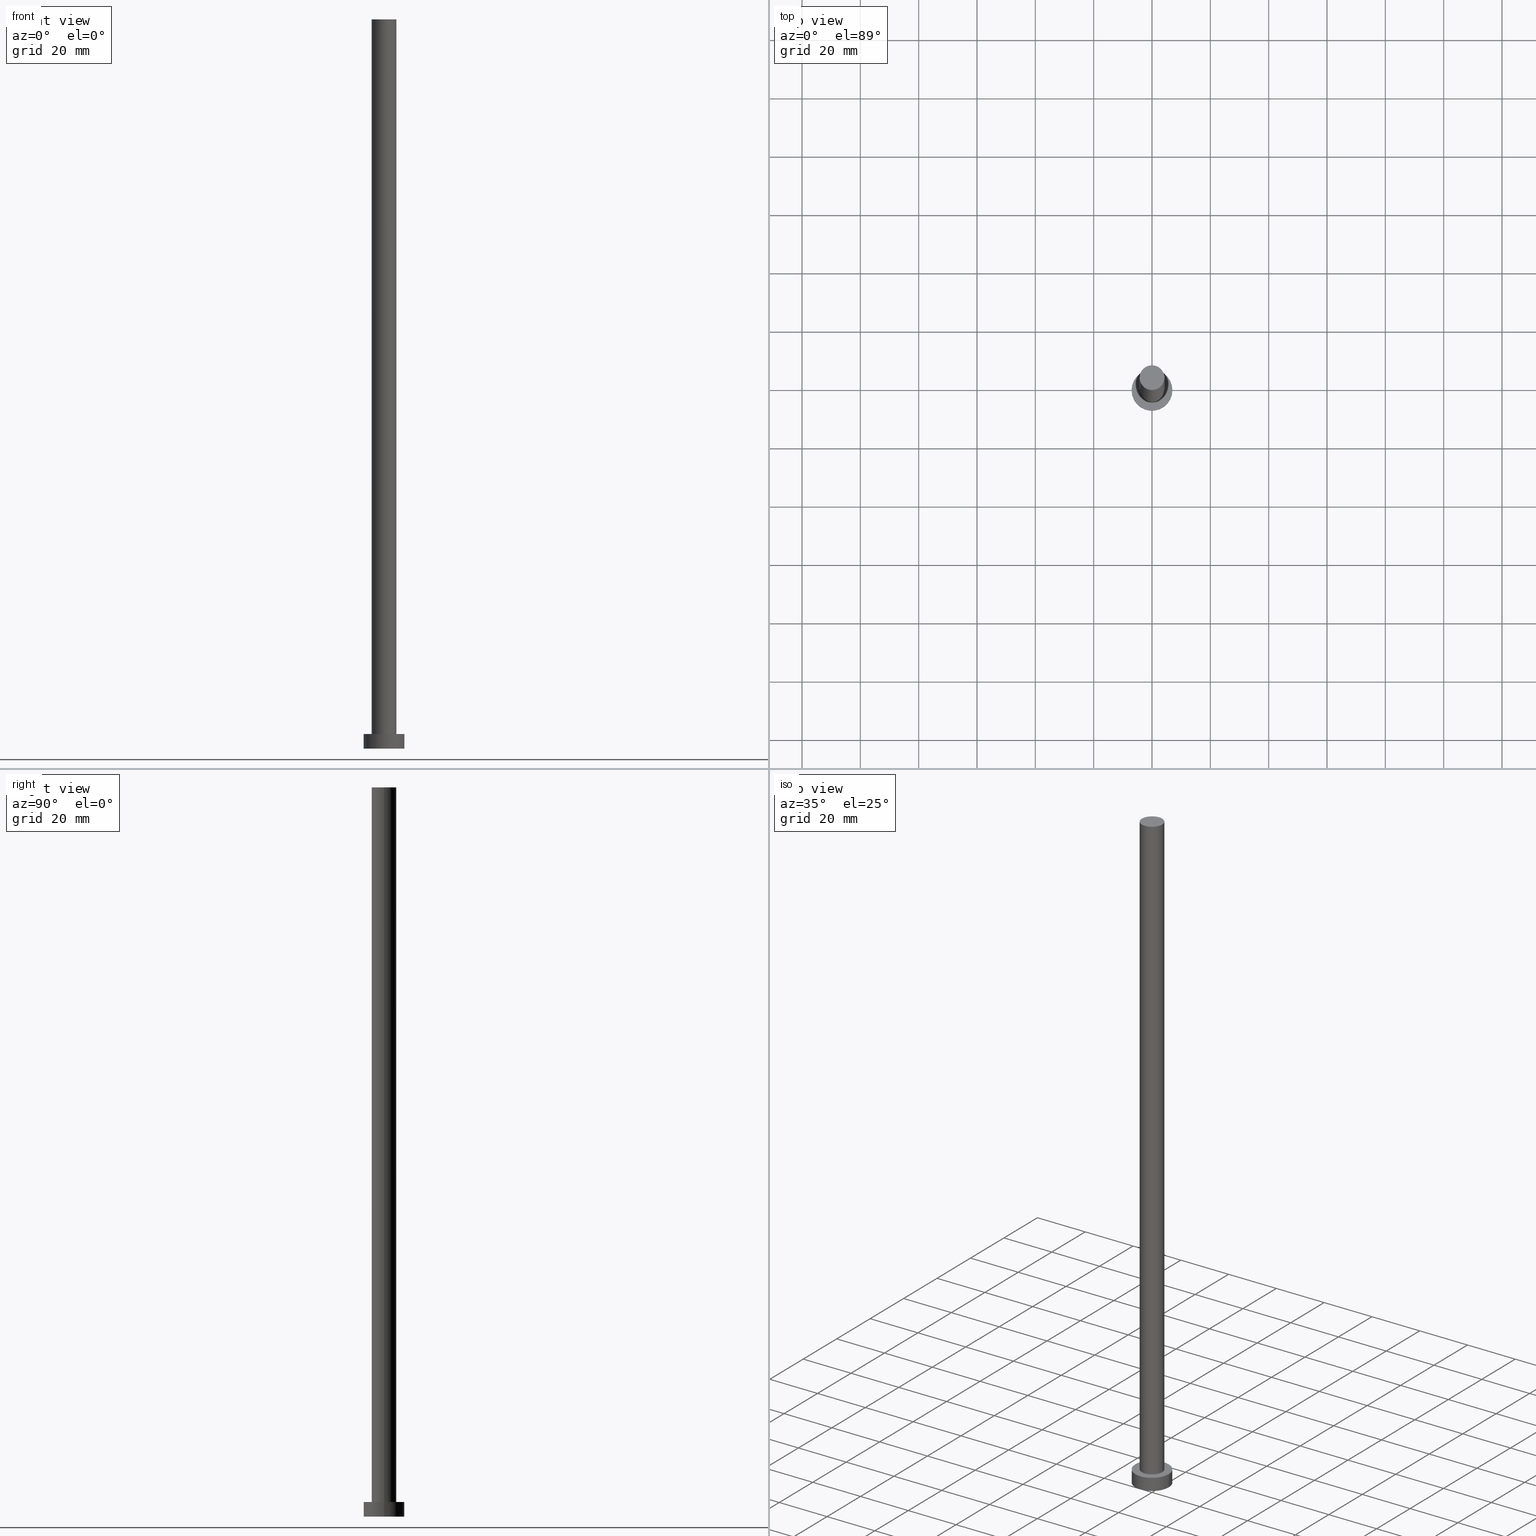
[diagram: canonical four-view strip — front | top / right | iso, engineering-drawing reading convention]
A machine part, canonical four-view strip (front | top / right | iso — engineering-drawing reading convention). The complete STEP part file that produces these views, byte-faithful:
ISO-10303-21;
HEADER;
FILE_DESCRIPTION (( 'STEP AP203' ),
    '1' );
FILE_NAME ('2279.STEP',
    '2026-02-06T12:38:50',
    ( '' ),
    ( '' ),
    'SwSTEP 2.0',
    'SolidWorks 2019',
    '' );
FILE_SCHEMA (( 'CONFIG_CONTROL_DESIGN' ));
ENDSEC;

DATA;
#1 = DIRECTION ( 'NONE',  ( 1.000000000000000000, 0.000000000000000000, 0.000000000000000000 ) ) ;
#2 = CYLINDRICAL_SURFACE ( 'NONE', #121, 4.250000000000000000 ) ;
#3 = AXIS2_PLACEMENT_3D ( 'NONE', #4, #236, #79 ) ;
#4 = CARTESIAN_POINT ( 'NONE',  ( 0.000000000000000000, 0.000000000000000000, 5.000000000000000000 ) ) ;
#5 = APPROVAL ( #73, 'NEUR�EN�' ) ;
#6 = APPLICATION_PROTOCOL_DEFINITION ( 'international standard', 'config_control_design', 1994, #63 ) ;
#7 = CIRCLE ( 'NONE', #37, 7.000000000000000000 ) ;
#8 = ORIENTED_EDGE ( 'NONE', *, *, #145, .T. ) ;
#9 = AXIS2_PLACEMENT_3D ( 'NONE', #67, #235, #34 ) ;
#10 = CARTESIAN_POINT ( 'NONE',  ( 0.000000000000000000, 0.000000000000000000, 0.000000000000000000 ) ) ;
#11 = ORIENTED_EDGE ( 'NONE', *, *, #33, .T. ) ;
#12 = CARTESIAN_POINT ( 'NONE',  ( 4.250000000000000000, 5.204748896376250699E-16, 250.0000000000000000 ) ) ;
#13 = EDGE_LOOP ( 'NONE', ( #58, #219, #112, #8 ) ) ;
#14 = CARTESIAN_POINT ( 'NONE',  ( 7.000000000000000000, 8.572527594031473190E-16, 5.000000000000000000 ) ) ;
#15 = PERSON_AND_ORGANIZATION_ROLE ( 'design_owner' ) ;
#16 = DIRECTION ( 'NONE',  ( 0.000000000000000000, 0.000000000000000000, 1.000000000000000000 ) ) ;
#17 = AXIS2_PLACEMENT_3D ( 'NONE', #216, #83, #1 ) ;
#18 = ORIENTED_EDGE ( 'NONE', *, *, #30, .T. ) ;
#19 = PLANE ( 'NONE',  #125 ) ;
#20 = APPROVAL_PERSON_ORGANIZATION ( #71, #32, #97 ) ;
#21 = CYLINDRICAL_SURFACE ( 'NONE', #86, 7.000000000000000000 ) ;
#22 = CC_DESIGN_APPROVAL ( #5, ( #122 ) ) ;
#23 = CC_DESIGN_DATE_AND_TIME_ASSIGNMENT ( #200, #134, ( #144 ) ) ;
#24 = DIRECTION ( 'NONE',  ( 1.000000000000000000, 0.000000000000000000, 0.000000000000000000 ) ) ;
#25 = CARTESIAN_POINT ( 'NONE',  ( 7.000000000000000000, 8.572527594031473190E-16, 0.000000000000000000 ) ) ;
#26 = VERTEX_POINT ( 'NONE', #191 ) ;
#27 = AXIS2_PLACEMENT_3D ( 'NONE', #87, #84, #160 ) ;
#28 = FACE_OUTER_BOUND ( 'NONE', #199, .T. ) ;
#29 = ORIENTED_EDGE ( 'NONE', *, *, #239, .T. ) ;
#30 = EDGE_CURVE ( 'NONE', #229, #240, #56, .T. ) ;
#31 = CC_DESIGN_SECURITY_CLASSIFICATION ( #144, ( #122 ) ) ;
#32 = APPROVAL ( #147, 'NEUR�EN�' ) ;
#33 = EDGE_CURVE ( 'NONE', #26, #188, #135, .T. ) ;
#34 = DIRECTION ( 'NONE',  ( 1.000000000000000000, 0.000000000000000000, 0.000000000000000000 ) ) ;
#35 = DIRECTION ( 'NONE',  ( -1.000000000000000000, 0.000000000000000000, 0.000000000000000000 ) ) ;
#36 = APPROVAL_DATE_TIME ( #44, #32 ) ;
#37 = AXIS2_PLACEMENT_3D ( 'NONE', #113, #95, #167 ) ;
#38 = ORIENTED_EDGE ( 'NONE', *, *, #239, .F. ) ;
#39 = DIRECTION ( 'NONE',  ( 0.000000000000000000, 0.000000000000000000, 1.000000000000000000 ) ) ;
#40 = PRODUCT_DEFINITION_SHAPE ( 'NONE', 'NONE',  #189 ) ;
#41 = CC_DESIGN_APPROVAL ( #32, ( #189 ) ) ;
#42 = EDGE_CURVE ( 'NONE', #201, #188, #238, .T. ) ;
#43 = FACE_OUTER_BOUND ( 'NONE', #178, .T. ) ;
#44 = DATE_AND_TIME ( #59, #46 ) ;
#45 = PERSON_AND_ORGANIZATION ( #221, #206 ) ;
#46 = LOCAL_TIME ( 13, 38, 50.00000000000000000, #209 ) ;
#47 = EDGE_LOOP ( 'NONE', ( #252, #129, #228, #172 ) ) ;
#48 = APPROVAL_ROLE ( '' ) ;
#49 = VECTOR ( 'NONE', #151, 1000.000000000000000 ) ;
#50 = ADVANCED_FACE ( 'NONE', ( #105 ), #2, .T. ) ;
#51 = VECTOR ( 'NONE', #223, 1000.000000000000000 ) ;
#52 = UNCERTAINTY_MEASURE_WITH_UNIT (LENGTH_MEASURE( 1.000000000000000082E-05 ), #102, 'distance_accuracy_value', 'NONE');
#53 = CARTESIAN_POINT ( 'NONE',  ( 4.250000000000000000, 5.204748896376250699E-16, 5.000000000000000000 ) ) ;
#54 =( NAMED_UNIT ( * ) PLANE_ANGLE_UNIT ( ) SI_UNIT ( $, .RADIAN. ) );
#55 = DIRECTION ( 'NONE',  ( -0.000000000000000000, -0.000000000000000000, -1.000000000000000000 ) ) ;
#56 = CIRCLE ( 'NONE', #61, 4.250000000000000000 ) ;
#57 = ADVANCED_FACE ( 'NONE', ( #196 ), #21, .T. ) ;
#58 = ORIENTED_EDGE ( 'NONE', *, *, #65, .F. ) ;
#59 = CALENDAR_DATE ( 2026, 6, 2 ) ;
#60 = DATE_AND_TIME ( #231, #103 ) ;
#61 = AXIS2_PLACEMENT_3D ( 'NONE', #251, #116, #24 ) ;
#62 = LOCAL_TIME ( 13, 38, 50.00000000000000000, #255 ) ;
#63 = APPLICATION_CONTEXT ( 'configuration controlled 3d designs of mechanical parts and assemblies' ) ;
#64 = EDGE_LOOP ( 'NONE', ( #212, #136 ) ) ;
#65 = EDGE_CURVE ( 'NONE', #240, #243, #81, .T. ) ;
#66 = VECTOR ( 'NONE', #139, 1000.000000000000000 ) ;
#67 = CARTESIAN_POINT ( 'NONE',  ( 0.000000000000000000, 0.000000000000000000, 5.000000000000000000 ) ) ;
#68 = CC_DESIGN_PERSON_AND_ORGANIZATION_ASSIGNMENT ( #180, #254, ( #144 ) ) ;
#69 = CIRCLE ( 'NONE', #237, 4.250000000000000000 ) ;
#70 = CIRCLE ( 'NONE', #110, 7.000000000000000000 ) ;
#71 = PERSON_AND_ORGANIZATION ( #221, #206 ) ;
#72 = DESIGN_CONTEXT ( 'detailed design', #165, 'design' ) ;
#73 = APPROVAL_STATUS ( 'not_yet_approved' ) ;
#74 = ADVANCED_FACE ( 'NONE', ( #43 ), #175, .F. ) ;
#75 = ORIENTED_EDGE ( 'NONE', *, *, #247, .T. ) ;
#76 = CARTESIAN_POINT ( 'NONE',  ( 0.000000000000000000, 0.000000000000000000, 5.000000000000000000 ) ) ;
#77 = DATE_AND_TIME ( #94, #140 ) ;
#78 = ORIENTED_EDGE ( 'NONE', *, *, #182, .T. ) ;
#79 = DIRECTION ( 'NONE',  ( 1.000000000000000000, 0.000000000000000000, 0.000000000000000000 ) ) ;
#80 = SHAPE_DEFINITION_REPRESENTATION ( #40, #202 ) ;
#81 = LINE ( 'NONE', #12, #222 ) ;
#82 = DATE_AND_TIME ( #123, #224 ) ;
#83 = DIRECTION ( 'NONE',  ( 0.000000000000000000, 0.000000000000000000, 1.000000000000000000 ) ) ;
#84 = DIRECTION ( 'NONE',  ( 0.000000000000000000, 0.000000000000000000, 1.000000000000000000 ) ) ;
#85 = EDGE_CURVE ( 'NONE', #188, #26, #7, .T. ) ;
#86 = AXIS2_PLACEMENT_3D ( 'NONE', #179, #249, #137 ) ;
#87 = CARTESIAN_POINT ( 'NONE',  ( 0.000000000000000000, 0.000000000000000000, 5.000000000000000000 ) ) ;
#88 = ADVANCED_FACE ( 'NONE', ( #171 ), #152, .T. ) ;
#89 =( NAMED_UNIT ( * ) SI_UNIT ( $, .STERADIAN. ) SOLID_ANGLE_UNIT ( ) );
#90 = AXIS2_PLACEMENT_3D ( 'NONE', #155, #230, #91 ) ;
#91 = DIRECTION ( 'NONE',  ( 1.000000000000000000, 0.000000000000000000, -0.000000000000000000 ) ) ;
#92 = AXIS2_PLACEMENT_3D ( 'NONE', #76, #39, #207 ) ;
#93 = EDGE_CURVE ( 'NONE', #240, #229, #69, .T. ) ;
#94 = CALENDAR_DATE ( 2026, 6, 2 ) ;
#95 = DIRECTION ( 'NONE',  ( 0.000000000000000000, 0.000000000000000000, 1.000000000000000000 ) ) ;
#96 = EDGE_LOOP ( 'NONE', ( #18, #126 ) ) ;
#97 = APPROVAL_ROLE ( '' ) ;
#98 = ORIENTED_EDGE ( 'NONE', *, *, #93, .F. ) ;
#99 = LINE ( 'NONE', #198, #66 ) ;
#100 = DIRECTION ( 'NONE',  ( 1.000000000000000000, 0.000000000000000000, 0.000000000000000000 ) ) ;
#101 = ORIENTED_EDGE ( 'NONE', *, *, #33, .F. ) ;
#102 =( LENGTH_UNIT ( ) NAMED_UNIT ( * ) SI_UNIT ( .MILLI., .METRE. ) );
#103 = LOCAL_TIME ( 13, 38, 50.00000000000000000, #156 ) ;
#104 = COORDINATED_UNIVERSAL_TIME_OFFSET ( 1, 0, .AHEAD. ) ;
#105 = FACE_OUTER_BOUND ( 'NONE', #208, .T. ) ;
#106 = ADVANCED_FACE ( 'NONE', ( #143, #28 ), #220, .T. ) ;
#107 = APPROVAL_PERSON_ORGANIZATION ( #119, #185, #48 ) ;
#108 = LINE ( 'NONE', #111, #49 ) ;
#109 = DIRECTION ( 'NONE',  ( 0.000000000000000000, 0.000000000000000000, 1.000000000000000000 ) ) ;
#110 = AXIS2_PLACEMENT_3D ( 'NONE', #117, #245, #118 ) ;
#111 = CARTESIAN_POINT ( 'NONE',  ( -7.000000000000000000, 0.000000000000000000, 5.000000000000000000 ) ) ;
#112 = ORIENTED_EDGE ( 'NONE', *, *, #205, .T. ) ;
#113 = CARTESIAN_POINT ( 'NONE',  ( 0.000000000000000000, 0.000000000000000000, 0.000000000000000000 ) ) ;
#114 = VERTEX_POINT ( 'NONE', #162 ) ;
#115 = PERSON_AND_ORGANIZATION_ROLE ( 'creator' ) ;
#116 = DIRECTION ( 'NONE',  ( 0.000000000000000000, 0.000000000000000000, 1.000000000000000000 ) ) ;
#117 = CARTESIAN_POINT ( 'NONE',  ( 0.000000000000000000, 0.000000000000000000, 5.000000000000000000 ) ) ;
#118 = DIRECTION ( 'NONE',  ( 1.000000000000000000, 0.000000000000000000, 0.000000000000000000 ) ) ;
#119 = PERSON_AND_ORGANIZATION ( #221, #206 ) ;
#120 = FACE_OUTER_BOUND ( 'NONE', #47, .T. ) ;
#121 = AXIS2_PLACEMENT_3D ( 'NONE', #187, #225, #133 ) ;
#122 = PRODUCT_DEFINITION_FORMATION_WITH_SPECIFIED_SOURCE ( 'LIBOVOLN�', '', #149, .NOT_KNOWN. ) ;
#123 = CALENDAR_DATE ( 2026, 6, 2 ) ;
#124 = CARTESIAN_POINT ( 'NONE',  ( 7.000000000000000000, 8.572527594031473190E-16, 5.000000000000000000 ) ) ;
#125 = AXIS2_PLACEMENT_3D ( 'NONE', #170, #127, #190 ) ;
#126 = ORIENTED_EDGE ( 'NONE', *, *, #93, .T. ) ;
#127 = DIRECTION ( 'NONE',  ( 0.000000000000000000, 0.000000000000000000, 1.000000000000000000 ) ) ;
#128 = ORIENTED_EDGE ( 'NONE', *, *, #85, .F. ) ;
#129 = ORIENTED_EDGE ( 'NONE', *, *, #42, .T. ) ;
#130 = APPLICATION_PROTOCOL_DEFINITION ( 'international standard', 'config_control_design', 1994, #165 ) ;
#131 = APPROVAL_DATE_TIME ( #60, #5 ) ;
#132 = CARTESIAN_POINT ( 'NONE',  ( -7.000000000000000000, 0.000000000000000000, 5.000000000000000000 ) ) ;
#133 = DIRECTION ( 'NONE',  ( -1.000000000000000000, 0.000000000000000000, 0.000000000000000000 ) ) ;
#134 = DATE_TIME_ROLE ( 'classification_date' ) ;
#135 = CIRCLE ( 'NONE', #17, 7.000000000000000000 ) ;
#136 = ORIENTED_EDGE ( 'NONE', *, *, #154, .F. ) ;
#137 = DIRECTION ( 'NONE',  ( -1.000000000000000000, 0.000000000000000000, 0.000000000000000000 ) ) ;
#138 = PRODUCT_RELATED_PRODUCT_CATEGORY ( 'detail', '', ( #149 ) ) ;
#139 = DIRECTION ( 'NONE',  ( -0.000000000000000000, -0.000000000000000000, -1.000000000000000000 ) ) ;
#140 = LOCAL_TIME ( 13, 38, 50.00000000000000000, #226 ) ;
#141 = ORIENTED_EDGE ( 'NONE', *, *, #205, .F. ) ;
#142 =( GEOMETRIC_REPRESENTATION_CONTEXT ( 3 ) GLOBAL_UNCERTAINTY_ASSIGNED_CONTEXT ( ( #52 ) ) GLOBAL_UNIT_ASSIGNED_CONTEXT ( ( #102, #54, #89 ) ) REPRESENTATION_CONTEXT ( 'NONE', 'WORKASPACE' ) );
#143 = FACE_BOUND ( 'NONE', #64, .T. ) ;
#144 = SECURITY_CLASSIFICATION ( '', '', #197 ) ;
#145 = EDGE_CURVE ( 'NONE', #114, #243, #163, .T. ) ;
#146 = ORIENTED_EDGE ( 'NONE', *, *, #154, .T. ) ;
#147 = APPROVAL_STATUS ( 'not_yet_approved' ) ;
#148 = CARTESIAN_POINT ( 'NONE',  ( 0.000000000000000000, 0.000000000000000000, 250.0000000000000000 ) ) ;
#149 = PRODUCT ( '2279', '2279', '', ( #213 ) ) ;
#150 = ORIENTED_EDGE ( 'NONE', *, *, #65, .T. ) ;
#151 = DIRECTION ( 'NONE',  ( -0.000000000000000000, -0.000000000000000000, -1.000000000000000000 ) ) ;
#152 = CYLINDRICAL_SURFACE ( 'NONE', #211, 4.250000000000000000 ) ;
#153 = CIRCLE ( 'NONE', #92, 7.000000000000000000 ) ;
#154 = EDGE_CURVE ( 'NONE', #243, #114, #184, .T. ) ;
#155 = CARTESIAN_POINT ( 'NONE',  ( 0.000000000000000000, 0.000000000000000000, 0.000000000000000000 ) ) ;
#156 = COORDINATED_UNIVERSAL_TIME_OFFSET ( 1, 0, .AHEAD. ) ;
#157 = CC_DESIGN_PERSON_AND_ORGANIZATION_ASSIGNMENT ( #183, #250, ( #122 ) ) ;
#158 = ORIENTED_EDGE ( 'NONE', *, *, #42, .F. ) ;
#159 = APPROVAL_STATUS ( 'not_yet_approved' ) ;
#160 = DIRECTION ( 'NONE',  ( 1.000000000000000000, 0.000000000000000000, -0.000000000000000000 ) ) ;
#161 = CC_DESIGN_PERSON_AND_ORGANIZATION_ASSIGNMENT ( #192, #15, ( #149 ) ) ;
#162 = CARTESIAN_POINT ( 'NONE',  ( -4.250000000000000000, 0.000000000000000000, 5.000000000000000000 ) ) ;
#163 = CIRCLE ( 'NONE', #9, 4.250000000000000000 ) ;
#164 = CARTESIAN_POINT ( 'NONE',  ( 0.000000000000000000, 0.000000000000000000, 5.000000000000000000 ) ) ;
#165 = APPLICATION_CONTEXT ( 'configuration controlled 3d designs of mechanical parts and assemblies' ) ;
#166 = CLOSED_SHELL ( 'NONE', ( #50, #218, #57, #106, #74, #88, #253 ) ) ;
#167 = DIRECTION ( 'NONE',  ( 1.000000000000000000, 0.000000000000000000, 0.000000000000000000 ) ) ;
#168 = VERTEX_POINT ( 'NONE', #132 ) ;
#169 = APPROVAL_PERSON_ORGANIZATION ( #174, #5, #176 ) ;
#170 = CARTESIAN_POINT ( 'NONE',  ( 0.000000000000000000, 0.000000000000000000, 250.0000000000000000 ) ) ;
#171 = FACE_OUTER_BOUND ( 'NONE', #13, .T. ) ;
#172 = ORIENTED_EDGE ( 'NONE', *, *, #247, .F. ) ;
#173 = DIRECTION ( 'NONE',  ( -0.000000000000000000, -0.000000000000000000, -1.000000000000000000 ) ) ;
#174 = PERSON_AND_ORGANIZATION ( #221, #206 ) ;
#175 = PLANE ( 'NONE',  #90 ) ;
#176 = APPROVAL_ROLE ( '' ) ;
#177 = AXIS2_PLACEMENT_3D ( 'NONE', #10, #109, #244 ) ;
#178 = EDGE_LOOP ( 'NONE', ( #101, #128 ) ) ;
#179 = CARTESIAN_POINT ( 'NONE',  ( 0.000000000000000000, 0.000000000000000000, 5.000000000000000000 ) ) ;
#180 = PERSON_AND_ORGANIZATION ( #221, #206 ) ;
#181 = PERSON_AND_ORGANIZATION_ROLE ( 'creator' ) ;
#182 = EDGE_CURVE ( 'NONE', #201, #168, #70, .T. ) ;
#183 = PERSON_AND_ORGANIZATION ( #221, #206 ) ;
#184 = CIRCLE ( 'NONE', #3, 4.250000000000000000 ) ;
#185 = APPROVAL ( #159, 'NEUR�EN�' ) ;
#186 = MANIFOLD_SOLID_BREP ( 'P�idat vysunut�m3', #166 ) ;
#187 = CARTESIAN_POINT ( 'NONE',  ( 0.000000000000000000, 0.000000000000000000, 250.0000000000000000 ) ) ;
#188 = VERTEX_POINT ( 'NONE', #25 ) ;
#189 = PRODUCT_DEFINITION ( 'NEZN�M�', '', #122, #72 ) ;
#190 = DIRECTION ( 'NONE',  ( 1.000000000000000000, 0.000000000000000000, -0.000000000000000000 ) ) ;
#191 = CARTESIAN_POINT ( 'NONE',  ( -7.000000000000000000, 0.000000000000000000, 0.000000000000000000 ) ) ;
#192 = PERSON_AND_ORGANIZATION ( #221, #206 ) ;
#193 = CARTESIAN_POINT ( 'NONE',  ( 0.000000000000000000, 0.000000000000000000, 250.0000000000000000 ) ) ;
#194 = CARTESIAN_POINT ( 'NONE',  ( -4.250000000000000000, 0.000000000000000000, 250.0000000000000000 ) ) ;
#195 = CYLINDRICAL_SURFACE ( 'NONE', #217, 7.000000000000000000 ) ;
#196 = FACE_OUTER_BOUND ( 'NONE', #210, .T. ) ;
#197 = SECURITY_CLASSIFICATION_LEVEL ( 'unclassified' ) ;
#198 = CARTESIAN_POINT ( 'NONE',  ( -4.250000000000000000, 0.000000000000000000, 250.0000000000000000 ) ) ;
#199 = EDGE_LOOP ( 'NONE', ( #29, #78 ) ) ;
#200 = DATE_AND_TIME ( #234, #62 ) ;
#201 = VERTEX_POINT ( 'NONE', #14 ) ;
#202 = ADVANCED_BREP_SHAPE_REPRESENTATION ( '2279', ( #186, #177 ), #142 ) ;
#203 = CC_DESIGN_APPROVAL ( #185, ( #144 ) ) ;
#204 = CC_DESIGN_PERSON_AND_ORGANIZATION_ASSIGNMENT ( #215, #181, ( #122 ) ) ;
#205 = EDGE_CURVE ( 'NONE', #229, #114, #99, .T. ) ;
#206 = ORGANIZATION ( 'NEUR�EN�', 'NEUR�EN�', '' ) ;
#207 = DIRECTION ( 'NONE',  ( 1.000000000000000000, 0.000000000000000000, 0.000000000000000000 ) ) ;
#208 = EDGE_LOOP ( 'NONE', ( #98, #150, #146, #141 ) ) ;
#209 = COORDINATED_UNIVERSAL_TIME_OFFSET ( 1, 0, .AHEAD. ) ;
#210 = EDGE_LOOP ( 'NONE', ( #158, #38, #75, #11 ) ) ;
#211 = AXIS2_PLACEMENT_3D ( 'NONE', #148, #55, #214 ) ;
#212 = ORIENTED_EDGE ( 'NONE', *, *, #145, .F. ) ;
#213 = MECHANICAL_CONTEXT ( 'NONE', #63, 'mechanical' ) ;
#214 = DIRECTION ( 'NONE',  ( -1.000000000000000000, 0.000000000000000000, 0.000000000000000000 ) ) ;
#215 = PERSON_AND_ORGANIZATION ( #221, #206 ) ;
#216 = CARTESIAN_POINT ( 'NONE',  ( 0.000000000000000000, 0.000000000000000000, 0.000000000000000000 ) ) ;
#217 = AXIS2_PLACEMENT_3D ( 'NONE', #164, #246, #35 ) ;
#218 = ADVANCED_FACE ( 'NONE', ( #120 ), #195, .T. ) ;
#219 = ORIENTED_EDGE ( 'NONE', *, *, #30, .F. ) ;
#220 = PLANE ( 'NONE',  #27 ) ;
#221 = PERSON ( 'NEUR�EN�', 'NEUR�EN�', 'NEUR�EN�', ('NEUR�EN�'), ('NEUR�EN�'), ('NEUR�EN�') ) ;
#222 = VECTOR ( 'NONE', #173, 1000.000000000000000 ) ;
#223 = DIRECTION ( 'NONE',  ( -0.000000000000000000, -0.000000000000000000, -1.000000000000000000 ) ) ;
#224 = LOCAL_TIME ( 13, 38, 50.00000000000000000, #104 ) ;
#225 = DIRECTION ( 'NONE',  ( -0.000000000000000000, -0.000000000000000000, -1.000000000000000000 ) ) ;
#226 = COORDINATED_UNIVERSAL_TIME_OFFSET ( 1, 0, .AHEAD. ) ;
#227 = FACE_OUTER_BOUND ( 'NONE', #96, .T. ) ;
#228 = ORIENTED_EDGE ( 'NONE', *, *, #85, .T. ) ;
#229 = VERTEX_POINT ( 'NONE', #194 ) ;
#230 = DIRECTION ( 'NONE',  ( 0.000000000000000000, 0.000000000000000000, 1.000000000000000000 ) ) ;
#231 = CALENDAR_DATE ( 2026, 6, 2 ) ;
#232 = APPROVAL_DATE_TIME ( #82, #185 ) ;
#233 = CC_DESIGN_PERSON_AND_ORGANIZATION_ASSIGNMENT ( #45, #115, ( #189 ) ) ;
#234 = CALENDAR_DATE ( 2026, 6, 2 ) ;
#235 = DIRECTION ( 'NONE',  ( 0.000000000000000000, 0.000000000000000000, 1.000000000000000000 ) ) ;
#236 = DIRECTION ( 'NONE',  ( 0.000000000000000000, 0.000000000000000000, 1.000000000000000000 ) ) ;
#237 = AXIS2_PLACEMENT_3D ( 'NONE', #193, #16, #100 ) ;
#238 = LINE ( 'NONE', #124, #51 ) ;
#239 = EDGE_CURVE ( 'NONE', #168, #201, #153, .T. ) ;
#240 = VERTEX_POINT ( 'NONE', #248 ) ;
#241 = CC_DESIGN_DATE_AND_TIME_ASSIGNMENT ( #77, #242, ( #189 ) ) ;
#242 = DATE_TIME_ROLE ( 'creation_date' ) ;
#243 = VERTEX_POINT ( 'NONE', #53 ) ;
#244 = DIRECTION ( 'NONE',  ( 1.000000000000000000, 0.000000000000000000, 0.000000000000000000 ) ) ;
#245 = DIRECTION ( 'NONE',  ( 0.000000000000000000, 0.000000000000000000, 1.000000000000000000 ) ) ;
#246 = DIRECTION ( 'NONE',  ( -0.000000000000000000, -0.000000000000000000, -1.000000000000000000 ) ) ;
#247 = EDGE_CURVE ( 'NONE', #168, #26, #108, .T. ) ;
#248 = CARTESIAN_POINT ( 'NONE',  ( 4.250000000000000000, 5.204748896376250699E-16, 250.0000000000000000 ) ) ;
#249 = DIRECTION ( 'NONE',  ( -0.000000000000000000, -0.000000000000000000, -1.000000000000000000 ) ) ;
#250 = PERSON_AND_ORGANIZATION_ROLE ( 'design_supplier' ) ;
#251 = CARTESIAN_POINT ( 'NONE',  ( 0.000000000000000000, 0.000000000000000000, 250.0000000000000000 ) ) ;
#252 = ORIENTED_EDGE ( 'NONE', *, *, #182, .F. ) ;
#253 = ADVANCED_FACE ( 'NONE', ( #227 ), #19, .T. ) ;
#254 = PERSON_AND_ORGANIZATION_ROLE ( 'classification_officer' ) ;
#255 = COORDINATED_UNIVERSAL_TIME_OFFSET ( 1, 0, .AHEAD. ) ;
ENDSEC;
END-ISO-10303-21;
